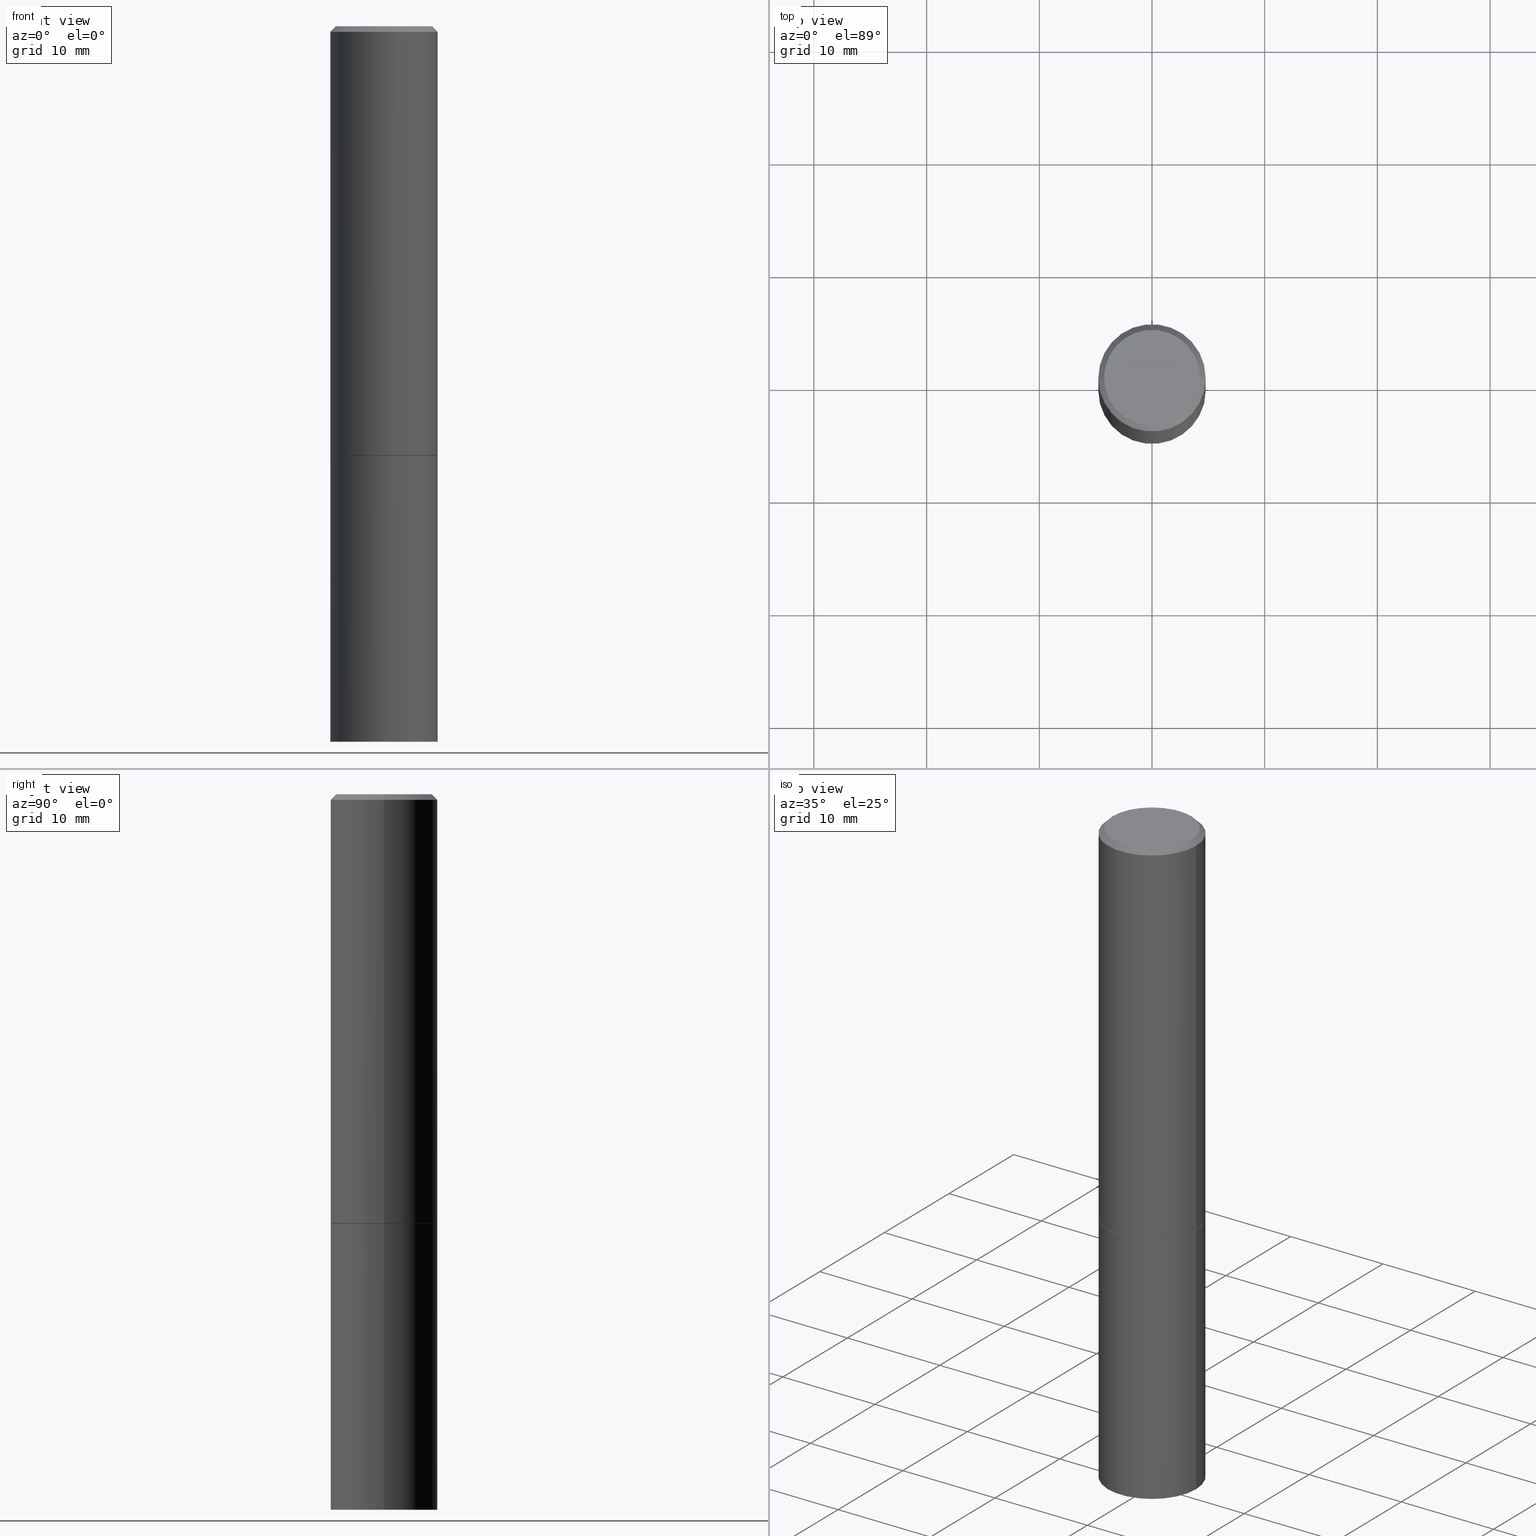
[diagram: canonical four-view strip — front | top / right | iso, engineering-drawing reading convention]
A machine part, canonical four-view strip (front | top / right | iso — engineering-drawing reading convention). The complete STEP part file that produces these views, byte-faithful:
ISO-10303-21;
HEADER;
FILE_DESCRIPTION (( 'STEP AP203' ),
    '1' );
FILE_NAME ('91029.STEP',
    '2024-03-01T03:23:02',
    ( '' ),
    ( '' ),
    'SwSTEP 2.0',
    'SolidWorks 2023',
    '' );
FILE_SCHEMA (( 'CONFIG_CONTROL_DESIGN' ));
ENDSEC;

DATA;
#1 = DIRECTION ( 'NONE',  ( -2.445468806185136597E-29, 3.491481338843145583E-15, 1.000000000000000000 ) ) ;
#2 = ORIENTED_EDGE ( 'NONE', *, *, #295, .F. ) ;
#3 = EDGE_LOOP ( 'NONE', ( #196, #287 ) ) ;
#4 = VERTEX_POINT ( 'NONE', #358 ) ;
#5 = AXIS2_PLACEMENT_3D ( 'NONE', #65, #197, #35 ) ;
#6 = PRODUCT ( '91029', '91029', '', ( #265 ) ) ;
#7 = PERSON_AND_ORGANIZATION ( #105, #303 ) ;
#8 = ADVANCED_BREP_SHAPE_REPRESENTATION ( '91029', ( #288, #33, #5 ), #124 ) ;
#9 = COORDINATED_UNIVERSAL_TIME_OFFSET ( 5, 0, .BEHIND. ) ;
#10 = DIRECTION ( 'NONE',  ( 1.000000000000000000, -6.982962677686265922E-15, 0.000000000000000000 ) ) ;
#11 = CARTESIAN_POINT ( 'NONE',  ( -0.1874999999999999445, 1.332267629550187454E-15, -9.223003294227945188E-30 ) ) ;
#12 = ORIENTED_EDGE ( 'NONE', *, *, #79, .T. ) ;
#13 = PRODUCT_DEFINITION ( 'UNKNOWN', '', #89, #222 ) ;
#14 = CC_DESIGN_APPROVAL ( #170, ( #89 ) ) ;
#15 = CARTESIAN_POINT ( 'NONE',  ( 6.113672015462842613E-29, -8.728703347107864943E-15, -2.500000000000000000 ) ) ;
#16 = CARTESIAN_POINT ( 'NONE',  ( -0.1874999999999998890, 1.239475875289310921E-15, -0.02000000000000004205 ) ) ;
#17 = CARTESIAN_POINT ( 'NONE',  ( 3.668203209277706016E-29, -5.237222008264719754E-15, -1.500000000000000444 ) ) ;
#18 = DIRECTION ( 'NONE',  ( 2.438088387897960049E-29, -3.491481338843145188E-15, -1.000000000000000000 ) ) ;
#19 = VERTEX_POINT ( 'NONE', #276 ) ;
#20 = EDGE_CURVE ( 'NONE', #224, #53, #167, .T. ) ;
#21 = PLANE ( 'NONE',  #320 ) ;
#22 = CLOSED_SHELL ( 'NONE', ( #49, #259, #83, #267 ) ) ;
#23 = ORIENTED_EDGE ( 'NONE', *, *, #118, .T. ) ;
#24 = EDGE_CURVE ( 'NONE', #19, #188, #134, .T. ) ;
#25 = ORIENTED_EDGE ( 'NONE', *, *, #240, .T. ) ;
#26 = DIRECTION ( 'NONE',  ( -1.000000000000000000, 6.982962677686265922E-15, 0.000000000000000000 ) ) ;
#27 = DIRECTION ( 'NONE',  ( -2.445468806185136597E-29, 3.491481338843145583E-15, 1.000000000000000000 ) ) ;
#28 = VERTEX_POINT ( 'NONE', #297 ) ;
#29 = ADVANCED_FACE ( 'NONE', ( #39 ), #241, .T. ) ;
#30 = DIRECTION ( 'NONE',  ( -2.445468806185136877E-29, 3.491481338843145188E-15, 1.000000000000000000 ) ) ;
#31 = LOCAL_TIME ( 22, 23, 2.000000000000000000, #318 ) ;
#32 = APPROVAL_DATE_TIME ( #160, #309 ) ;
#33 = MANIFOLD_SOLID_BREP ( 'Body-Move/Copy2[2]', #339 ) ;
#34 = EDGE_CURVE ( 'NONE', #77, #244, #239, .T. ) ;
#35 = DIRECTION ( 'NONE',  ( 1.000000000000000000, 0.000000000000000000, 0.000000000000000000 ) ) ;
#36 = CARTESIAN_POINT ( 'NONE',  ( 0.1864999999999999714, -6.539544547653208748E-15, -1.500000000000000444 ) ) ;
#37 = DIRECTION ( 'NONE',  ( 1.000000000000000000, -6.982962677686269077E-15, 0.000000000000000000 ) ) ;
#38 = CARTESIAN_POINT ( 'NONE',  ( 3.668203209277706016E-29, -5.237222008264719754E-15, -1.500000000000000444 ) ) ;
#39 = FACE_OUTER_BOUND ( 'NONE', #325, .T. ) ;
#40 = CARTESIAN_POINT ( 'NONE',  ( -0.1875000000000000278, -5.650695048136103317E-15, -1.500000000000000222 ) ) ;
#41 = CC_DESIGN_PERSON_AND_ORGANIZATION_ASSIGNMENT ( #91, #162, ( #6 ) ) ;
#42 = CALENDAR_DATE ( 2024, 29, 2 ) ;
#43 = AXIS2_PLACEMENT_3D ( 'NONE', #98, #207, #329 ) ;
#44 = AXIS2_PLACEMENT_3D ( 'NONE', #284, #347, #127 ) ;
#45 = FACE_OUTER_BOUND ( 'NONE', #252, .T. ) ;
#46 = LOCAL_TIME ( 22, 23, 2.000000000000000000, #9 ) ;
#47 = DATE_TIME_ROLE ( 'creation_date' ) ;
#48 = DIRECTION ( 'NONE',  ( 1.000000000000000000, -6.982962677686266711E-15, 4.876176775795935793E-29 ) ) ;
#49 = ADVANCED_FACE ( 'NONE', ( #102 ), #203, .T. ) ;
#50 = UNCERTAINTY_MEASURE_WITH_UNIT (LENGTH_MEASURE( 1.000000000000000082E-05 ), #299, 'distance_accuracy_value', 'NONE');
#51 = CARTESIAN_POINT ( 'NONE',  ( 0.000000000000000000, 0.000000000000000000, 0.000000000000000000 ) ) ;
#52 = AXIS2_PLACEMENT_3D ( 'NONE', #146, #361, #103 ) ;
#53 = VERTEX_POINT ( 'NONE', #40 ) ;
#54 = CARTESIAN_POINT ( 'NONE',  ( 3.665757740471519853E-29, -5.233730526925875958E-15, -1.499000000000000110 ) ) ;
#55 = EDGE_CURVE ( 'NONE', #147, #53, #152, .T. ) ;
#56 = APPROVAL_DATE_TIME ( #315, #275 ) ;
#57 = VERTEX_POINT ( 'NONE', #326 ) ;
#58 = CARTESIAN_POINT ( 'NONE',  ( 4.890937612370283668E-31, -6.982962677686305168E-17, -0.02000000000000004205 ) ) ;
#59 = CIRCLE ( 'NONE', #43, 0.1874999999999998890 ) ;
#60 = DIRECTION ( 'NONE',  ( -1.000000000000000000, 6.982962677686265922E-15, 0.000000000000000000 ) ) ;
#61 = AXIS2_PLACEMENT_3D ( 'NONE', #277, #193, #26 ) ;
#62 = CALENDAR_DATE ( 2024, 29, 2 ) ;
#63 = DIRECTION ( 'NONE',  ( -1.000000000000000000, 6.982962677686265922E-15, -4.876176775795935793E-29 ) ) ;
#64 = AXIS2_PLACEMENT_3D ( 'NONE', #125, #156, #63 ) ;
#65 = CARTESIAN_POINT ( 'NONE',  ( 0.000000000000000000, 0.000000000000000000, 0.000000000000000000 ) ) ;
#66 = LINE ( 'NONE', #36, #290 ) ;
#67 = CARTESIAN_POINT ( 'NONE',  ( 3.668203209277704895E-29, -5.237222008264718177E-15, -1.500000000000000222 ) ) ;
#68 = CARTESIAN_POINT ( 'NONE',  ( 0.000000000000000000, 0.000000000000000000, 0.000000000000000000 ) ) ;
#69 = AXIS2_PLACEMENT_3D ( 'NONE', #307, #305, #334 ) ;
#70 = DIRECTION ( 'NONE',  ( 1.000000000000000000, -6.982962677686266711E-15, 0.000000000000000000 ) ) ;
#71 = DIRECTION ( 'NONE',  ( -2.445468806185136597E-29, 3.491481338843145583E-15, 1.000000000000000000 ) ) ;
#72 = EDGE_CURVE ( 'NONE', #224, #57, #225, .T. ) ;
#73 = EDGE_LOOP ( 'NONE', ( #194, #220, #232, #183 ) ) ;
#74 = FACE_OUTER_BOUND ( 'NONE', #363, .T. ) ;
#75 = LINE ( 'NONE', #268, #302 ) ;
#76 = ORIENTED_EDGE ( 'NONE', *, *, #322, .F. ) ;
#77 = VERTEX_POINT ( 'NONE', #182 ) ;
#78 = LOCAL_TIME ( 22, 23, 2.000000000000000000, #362 ) ;
#79 = EDGE_CURVE ( 'NONE', #270, #342, #310, .T. ) ;
#80 = FACE_OUTER_BOUND ( 'NONE', #73, .T. ) ;
#81 = PERSON_AND_ORGANIZATION_ROLE ( 'classification_officer' ) ;
#82 = AXIS2_PLACEMENT_3D ( 'NONE', #90, #292, #120 ) ;
#83 = ADVANCED_FACE ( 'NONE', ( #174 ), #335, .F. ) ;
#84 = PLANE ( 'NONE',  #191 ) ;
#85 = DIRECTION ( 'NONE',  ( 1.000000000000000000, -6.982962677686266711E-15, 0.000000000000000000 ) ) ;
#86 = DIRECTION ( 'NONE',  ( 1.000000000000000000, -6.982962677686269077E-15, 0.000000000000000000 ) ) ;
#87 = DIRECTION ( 'NONE',  ( 1.000000000000000000, -6.982962677686265922E-15, 4.876176775795935793E-29 ) ) ;
#88 = CALENDAR_DATE ( 2024, 29, 2 ) ;
#89 = PRODUCT_DEFINITION_FORMATION_WITH_SPECIFIED_SOURCE ( 'ANY', '', #6, .NOT_KNOWN. ) ;
#90 = CARTESIAN_POINT ( 'NONE',  ( 3.668203209277706016E-29, -5.237222008264719754E-15, -1.500000000000000444 ) ) ;
#91 = PERSON_AND_ORGANIZATION ( #105, #303 ) ;
#92 = ORIENTED_EDGE ( 'NONE', *, *, #227, .F. ) ;
#93 = APPROVAL_PERSON_ORGANIZATION ( #178, #275, #219 ) ;
#94 =( NAMED_UNIT ( * ) PLANE_ANGLE_UNIT ( ) SI_UNIT ( $, .RADIAN. ) );
#95 = CARTESIAN_POINT ( 'NONE',  ( 0.000000000000000000, 0.000000000000000000, 0.000000000000000000 ) ) ;
#96 = DIRECTION ( 'NONE',  ( -2.445468806185136877E-29, 3.491481338843145188E-15, 1.000000000000000000 ) ) ;
#97 = ORIENTED_EDGE ( 'NONE', *, *, #240, .F. ) ;
#98 = CARTESIAN_POINT ( 'NONE',  ( 4.890937612370283668E-31, -6.982962677686305168E-17, -0.02000000000000004205 ) ) ;
#99 = CARTESIAN_POINT ( 'NONE',  ( 6.113672015462842613E-29, -8.728703347107864943E-15, -2.500000000000000000 ) ) ;
#100 = PERSON_AND_ORGANIZATION ( #105, #303 ) ;
#101 = CYLINDRICAL_SURFACE ( 'NONE', #247, 0.1874999999999999445 ) ;
#102 = FACE_OUTER_BOUND ( 'NONE', #237, .T. ) ;
#103 = DIRECTION ( 'NONE',  ( 1.000000000000000000, -6.982962677686266711E-15, 0.000000000000000000 ) ) ;
#104 = DIRECTION ( 'NONE',  ( 1.000000000000000000, -6.982962677686266711E-15, 4.876176775795935793E-29 ) ) ;
#105 = PERSON ( 'UNSPECIFIED', 'UNSPECIFIED', 'UNSPECIFIED', ('UNSPECIFIED'), ('UNSPECIFIED'), ('UNSPECIFIED') ) ;
#106 = ADVANCED_FACE ( 'NONE', ( #306 ), #319, .T. ) ;
#107 = VECTOR ( 'NONE', #96, 39.37007874015748143 ) ;
#108 = DIRECTION ( 'NONE',  ( 1.000000000000000000, -6.982962677686265922E-15, 4.876176775795935793E-29 ) ) ;
#109 = DIRECTION ( 'NONE',  ( 1.000000000000000000, -6.982962677686265922E-15, 4.876176775795935793E-29 ) ) ;
#110 = PERSON_AND_ORGANIZATION ( #105, #303 ) ;
#111 = DATE_AND_TIME ( #311, #46 ) ;
#112 = EDGE_CURVE ( 'NONE', #342, #188, #210, .T. ) ;
#113 = ORIENTED_EDGE ( 'NONE', *, *, #112, .F. ) ;
#114 = EDGE_LOOP ( 'NONE', ( #151, #257 ) ) ;
#115 = CALENDAR_DATE ( 2024, 29, 2 ) ;
#116 = CONICAL_SURFACE ( 'NONE', #149, 0.1874999999999998890, 0.7853981633974471688 ) ;
#117 = ORIENTED_EDGE ( 'NONE', *, *, #55, .T. ) ;
#118 = EDGE_CURVE ( 'NONE', #77, #28, #148, .T. ) ;
#119 = APPROVAL_PERSON_ORGANIZATION ( #145, #170, #333 ) ;
#120 = DIRECTION ( 'NONE',  ( 1.000000000000000000, -6.982962677686269077E-15, 0.000000000000000000 ) ) ;
#121 = LENGTH_MEASURE_WITH_UNIT ( LENGTH_MEASURE( 0.02539999999999999897 ), #256 );
#122 = PRODUCT_RELATED_PRODUCT_CATEGORY ( 'detail', '', ( #6 ) ) ;
#123 = AXIS2_PLACEMENT_3D ( 'NONE', #99, #1, #85 ) ;
#124 =( GEOMETRIC_REPRESENTATION_CONTEXT ( 3 ) GLOBAL_UNCERTAINTY_ASSIGNED_CONTEXT ( ( #50 ) ) GLOBAL_UNIT_ASSIGNED_CONTEXT ( ( #299, #94, #165 ) ) REPRESENTATION_CONTEXT ( 'NONE', 'WORKASPACE' ) );
#125 = CARTESIAN_POINT ( 'NONE',  ( 1.169646248512448806E-15, 0.1674999999999998990, -5.848231242562264739E-16 ) ) ;
#126 = ADVANCED_FACE ( 'NONE', ( #45 ), #101, .T. ) ;
#127 = DIRECTION ( 'NONE',  ( 1.000000000000000000, -6.982962677686269077E-15, 0.000000000000000000 ) ) ;
#128 = DIRECTION ( 'NONE',  ( 1.000000000000000000, -6.982962677686266711E-15, 0.000000000000000000 ) ) ;
#129 = DIRECTION ( 'NONE',  ( 1.000000000000000000, -6.982962677686265922E-15, 4.876176775795935793E-29 ) ) ;
#130 = AXIS2_PLACEMENT_3D ( 'NONE', #180, #304, #108 ) ;
#131 = EDGE_CURVE ( 'NONE', #188, #342, #59, .T. ) ;
#132 = ORIENTED_EDGE ( 'NONE', *, *, #235, .T. ) ;
#133 = ORIENTED_EDGE ( 'NONE', *, *, #24, .F. ) ;
#134 = LINE ( 'NONE', #365, #359 ) ;
#135 = CC_DESIGN_SECURITY_CLASSIFICATION ( #249, ( #89 ) ) ;
#136 = EDGE_CURVE ( 'NONE', #4, #342, #75, .T. ) ;
#137 = DATE_AND_TIME ( #115, #236 ) ;
#138 = PERSON_AND_ORGANIZATION ( #105, #303 ) ;
#139 = ORIENTED_EDGE ( 'NONE', *, *, #177, .F. ) ;
#140 = AXIS2_PLACEMENT_3D ( 'NONE', #353, #144, #128 ) ;
#141 = EDGE_CURVE ( 'NONE', #19, #4, #352, .T. ) ;
#142 = FACE_OUTER_BOUND ( 'NONE', #3, .T. ) ;
#143 = LINE ( 'NONE', #11, #107 ) ;
#144 = DIRECTION ( 'NONE',  ( -2.445468806185136597E-29, 3.491481338843145583E-15, 1.000000000000000000 ) ) ;
#145 = PERSON_AND_ORGANIZATION ( #105, #303 ) ;
#146 = CARTESIAN_POINT ( 'NONE',  ( 3.668203209277704895E-29, -5.237222008264718177E-15, -1.500000000000000222 ) ) ;
#147 = VERTEX_POINT ( 'NONE', #228 ) ;
#148 = CIRCLE ( 'NONE', #44, 0.1864999999999999714 ) ;
#149 = AXIS2_PLACEMENT_3D ( 'NONE', #58, #190, #60 ) ;
#150 = CARTESIAN_POINT ( 'NONE',  ( 0.1874999999999999445, -1.309305502066174614E-15, 9.142831454617376809E-30 ) ) ;
#151 = ORIENTED_EDGE ( 'NONE', *, *, #158, .F. ) ;
#152 = CIRCLE ( 'NONE', #52, 0.1875000000000000278 ) ;
#153 = AXIS2_PLACEMENT_3D ( 'NONE', #67, #234, #201 ) ;
#154 = ORIENTED_EDGE ( 'NONE', *, *, #112, .T. ) ;
#155 = CARTESIAN_POINT ( 'NONE',  ( 3.668203209277706016E-29, -5.237222008264719754E-15, -1.500000000000000444 ) ) ;
#156 = DIRECTION ( 'NONE',  ( 2.438088387897960049E-29, -3.491481338843145188E-15, -1.000000000000000000 ) ) ;
#157 = ORIENTED_EDGE ( 'NONE', *, *, #79, .F. ) ;
#158 = EDGE_CURVE ( 'NONE', #28, #77, #242, .T. ) ;
#159 = VECTOR ( 'NONE', #269, 39.37007874015748143 ) ;
#160 = DATE_AND_TIME ( #62, #31 ) ;
#161 = CC_DESIGN_PERSON_AND_ORGANIZATION_ASSIGNMENT ( #345, #81, ( #249 ) ) ;
#162 = PERSON_AND_ORGANIZATION_ROLE ( 'design_owner' ) ;
#163 = CARTESIAN_POINT ( 'NONE',  ( 0.1875000000000000278, -6.543036028992050967E-15, -1.499000000000000110 ) ) ;
#164 = DIRECTION ( 'NONE',  ( -2.445468806185136597E-29, 3.491481338843145583E-15, 1.000000000000000000 ) ) ;
#165 =( NAMED_UNIT ( * ) SI_UNIT ( $, .STERADIAN. ) SOLID_ANGLE_UNIT ( ) );
#166 = DIRECTION ( 'NONE',  ( -2.445468806185136597E-29, 3.491481338843145583E-15, 1.000000000000000000 ) ) ;
#167 = LINE ( 'NONE', #209, #159 ) ;
#168 = ORIENTED_EDGE ( 'NONE', *, *, #295, .T. ) ;
#169 = ORIENTED_EDGE ( 'NONE', *, *, #24, .T. ) ;
#170 = APPROVAL ( #274, 'UNSPECIFIED' ) ;
#171 = AXIS2_PLACEMENT_3D ( 'NONE', #95, #71, #296 ) ;
#172 = AXIS2_PLACEMENT_3D ( 'NONE', #38, #301, #37 ) ;
#173 = CARTESIAN_POINT ( 'NONE',  ( 0.000000000000000000, 0.000000000000000000, 0.000000000000000000 ) ) ;
#174 = FACE_OUTER_BOUND ( 'NONE', #281, .T. ) ;
#175 = CYLINDRICAL_SURFACE ( 'NONE', #324, 0.1875000000000000278 ) ;
#176 = DIRECTION ( 'NONE',  ( -0.7071067811865466846, 2.468850131082247989E-15, -0.7071067811865483499 ) ) ;
#177 = EDGE_CURVE ( 'NONE', #270, #244, #308, .T. ) ;
#178 = PERSON_AND_ORGANIZATION ( #105, #303 ) ;
#179 = AXIS2_PLACEMENT_3D ( 'NONE', #349, #317, #10 ) ;
#180 = CARTESIAN_POINT ( 'NONE',  ( 0.000000000000000000, 0.000000000000000000, 0.000000000000000000 ) ) ;
#181 = AXIS2_PLACEMENT_3D ( 'NONE', #54, #192, #341 ) ;
#182 = CARTESIAN_POINT ( 'NONE',  ( -0.1864999999999999714, -3.906761351723910512E-15, -1.500000000000000444 ) ) ;
#183 = ORIENTED_EDGE ( 'NONE', *, *, #212, .F. ) ;
#184 = CC_DESIGN_PERSON_AND_ORGANIZATION_ASSIGNMENT ( #7, #214, ( #89 ) ) ;
#185 = SHAPE_DEFINITION_REPRESENTATION ( #331, #8 ) ;
#186 = DIRECTION ( 'NONE',  ( -2.445468806185136877E-29, 3.491481338843145188E-15, 1.000000000000000000 ) ) ;
#187 = ORIENTED_EDGE ( 'NONE', *, *, #158, .T. ) ;
#188 = VERTEX_POINT ( 'NONE', #16 ) ;
#189 = FACE_OUTER_BOUND ( 'NONE', #312, .T. ) ;
#190 = DIRECTION ( 'NONE',  ( 2.445468806185136597E-29, -3.491481338843145583E-15, -1.000000000000000000 ) ) ;
#191 = AXIS2_PLACEMENT_3D ( 'NONE', #155, #344, #87 ) ;
#192 = DIRECTION ( 'NONE',  ( -2.445468806185136597E-29, 3.491481338843145583E-15, 1.000000000000000000 ) ) ;
#193 = DIRECTION ( 'NONE',  ( 2.445468806185136597E-29, -3.491481338843145583E-15, -1.000000000000000000 ) ) ;
#194 = ORIENTED_EDGE ( 'NONE', *, *, #20, .F. ) ;
#195 = APPROVAL_ROLE ( '' ) ;
#196 = ORIENTED_EDGE ( 'NONE', *, *, #235, .F. ) ;
#197 = DIRECTION ( 'NONE',  ( 0.000000000000000000, 0.000000000000000000, 1.000000000000000000 ) ) ;
#198 = AXIS2_PLACEMENT_3D ( 'NONE', #17, #282, #86 ) ;
#199 = CC_DESIGN_APPROVAL ( #309, ( #13 ) ) ;
#200 = APPLICATION_PROTOCOL_DEFINITION ( 'international standard', 'config_control_design', 1994, #250 ) ;
#201 = DIRECTION ( 'NONE',  ( 1.000000000000000000, -6.982962677686266711E-15, 0.000000000000000000 ) ) ;
#202 = FACE_OUTER_BOUND ( 'NONE', #264, .T. ) ;
#203 = CYLINDRICAL_SURFACE ( 'NONE', #271, 0.1875000000000000278 ) ;
#204 = CARTESIAN_POINT ( 'NONE',  ( 0.000000000000000000, 0.000000000000000000, 0.000000000000000000 ) ) ;
#205 = CC_DESIGN_PERSON_AND_ORGANIZATION_ASSIGNMENT ( #138, #278, ( #89 ) ) ;
#206 = ORIENTED_EDGE ( 'NONE', *, *, #20, .T. ) ;
#207 = DIRECTION ( 'NONE',  ( -2.445468806185136597E-29, 3.491481338843145583E-15, 1.000000000000000000 ) ) ;
#208 = ORIENTED_EDGE ( 'NONE', *, *, #55, .F. ) ;
#209 = CARTESIAN_POINT ( 'NONE',  ( -0.1875000000000000278, 1.332267629550188046E-15, -9.223003294227947991E-30 ) ) ;
#210 = CIRCLE ( 'NONE', #179, 0.1874999999999998890 ) ;
#211 = LOCAL_TIME ( 22, 23, 2.000000000000000000, #246 ) ;
#212 = EDGE_CURVE ( 'NONE', #53, #147, #330, .T. ) ;
#213 = DATE_AND_TIME ( #42, #78 ) ;
#214 = PERSON_AND_ORGANIZATION_ROLE ( 'design_supplier' ) ;
#215 = APPROVAL_DATE_TIME ( #111, #170 ) ;
#216 = ORIENTED_EDGE ( 'NONE', *, *, #131, .F. ) ;
#217 = VECTOR ( 'NONE', #231, 39.37007874015748143 ) ;
#218 = EDGE_LOOP ( 'NONE', ( #97, #293, #154, #133 ) ) ;
#219 = APPROVAL_ROLE ( '' ) ;
#220 = ORIENTED_EDGE ( 'NONE', *, *, #72, .T. ) ;
#221 = EDGE_LOOP ( 'NONE', ( #254, #25 ) ) ;
#222 = DESIGN_CONTEXT ( 'detailed design', #354, 'design' ) ;
#223 = APPROVAL_STATUS ( 'not_yet_approved' ) ;
#224 = VERTEX_POINT ( 'NONE', #321 ) ;
#225 = CIRCLE ( 'NONE', #123, 0.1875000000000000278 ) ;
#226 = ORIENTED_EDGE ( 'NONE', *, *, #328, .T. ) ;
#227 = EDGE_CURVE ( 'NONE', #28, #270, #66, .T. ) ;
#228 = CARTESIAN_POINT ( 'NONE',  ( 0.1875000000000000278, -6.546527510330893974E-15, -1.500000000000000222 ) ) ;
#229 = CIRCLE ( 'NONE', #130, 0.1674999999999998990 ) ;
#230 = APPLICATION_PROTOCOL_DEFINITION ( 'international standard', 'config_control_design', 1994, #354 ) ;
#231 = DIRECTION ( 'NONE',  ( -0.7071067811864388819, 7.493145998869961307E-15, 0.7071067811866561525 ) ) ;
#232 = ORIENTED_EDGE ( 'NONE', *, *, #322, .T. ) ;
#233 = APPROVAL_STATUS ( 'not_yet_approved' ) ;
#234 = DIRECTION ( 'NONE',  ( -2.445468806185136597E-29, 3.491481338843145583E-15, 1.000000000000000000 ) ) ;
#235 = EDGE_CURVE ( 'NONE', #57, #224, #314, .T. ) ;
#236 = LOCAL_TIME ( 22, 23, 2.000000000000000000, #338 ) ;
#237 = EDGE_LOOP ( 'NONE', ( #132, #206, #208, #76 ) ) ;
#238 = DIRECTION ( 'NONE',  ( -1.000000000000000000, 6.982962677686265922E-15, -4.876176775795935793E-29 ) ) ;
#239 = LINE ( 'NONE', #364, #217 ) ;
#240 = EDGE_CURVE ( 'NONE', #4, #19, #229, .T. ) ;
#241 = CONICAL_SURFACE ( 'NONE', #198, 0.1864999999999999714, 0.7853981633972946241 ) ;
#242 = CIRCLE ( 'NONE', #172, 0.1864999999999999714 ) ;
#243 = DIRECTION ( 'NONE',  ( -2.445468806185136597E-29, 3.491481338843145583E-15, 1.000000000000000000 ) ) ;
#244 = VERTEX_POINT ( 'NONE', #245 ) ;
#245 = CARTESIAN_POINT ( 'NONE',  ( -0.1875000000000000278, -1.319512447301180005E-15, -1.499000000000000110 ) ) ;
#246 = COORDINATED_UNIVERSAL_TIME_OFFSET ( 5, 0, .BEHIND. ) ;
#247 = AXIS2_PLACEMENT_3D ( 'NONE', #204, #166, #104 ) ;
#248 = CC_DESIGN_APPROVAL ( #275, ( #249 ) ) ;
#249 = SECURITY_CLASSIFICATION ( '', '', #251 ) ;
#250 = APPLICATION_CONTEXT ( 'configuration controlled 3d designs of mechanical parts and assemblies' ) ;
#251 = SECURITY_CLASSIFICATION_LEVEL ( 'unclassified' ) ;
#252 = EDGE_LOOP ( 'NONE', ( #357, #168, #113, #157 ) ) ;
#253 = CARTESIAN_POINT ( 'NONE',  ( 1.309305502066236145E-15, 0.1874999999999912847, -2.500000000000000444 ) ) ;
#254 = ORIENTED_EDGE ( 'NONE', *, *, #141, .T. ) ;
#255 = ADVANCED_FACE ( 'NONE', ( #74 ), #286, .T. ) ;
#256 =( LENGTH_UNIT ( ) NAMED_UNIT ( * ) SI_UNIT ( $, .METRE. ) );
#257 = ORIENTED_EDGE ( 'NONE', *, *, #118, .F. ) ;
#258 = CARTESIAN_POINT ( 'NONE',  ( 0.1874999999999998890, -1.356173001359024480E-15, -0.02000000000000004205 ) ) ;
#259 = ADVANCED_FACE ( 'NONE', ( #142 ), #21, .T. ) ;
#260 = FACE_OUTER_BOUND ( 'NONE', #221, .T. ) ;
#261 = DIRECTION ( 'NONE',  ( 0.7071067811864388819, -2.468850131081119129E-15, 0.7071067811866561525 ) ) ;
#262 = AXIS2_PLACEMENT_3D ( 'NONE', #15, #164, #70 ) ;
#263 = LINE ( 'NONE', #289, #340 ) ;
#264 = EDGE_LOOP ( 'NONE', ( #187, #355, #139, #92 ) ) ;
#265 = MECHANICAL_CONTEXT ( 'NONE', #250, 'mechanical' ) ;
#266 = ORIENTED_EDGE ( 'NONE', *, *, #34, .F. ) ;
#267 = ADVANCED_FACE ( 'NONE', ( #80 ), #175, .T. ) ;
#268 = CARTESIAN_POINT ( 'NONE',  ( 0.1874999999999998890, -1.356173001359024480E-15, -0.02000000000000004205 ) ) ;
#269 = DIRECTION ( 'NONE',  ( -2.445468806185136877E-29, 3.491481338843145188E-15, 1.000000000000000000 ) ) ;
#270 = VERTEX_POINT ( 'NONE', #163 ) ;
#271 = AXIS2_PLACEMENT_3D ( 'NONE', #68, #298, #129 ) ;
#272 = CIRCLE ( 'NONE', #181, 0.1875000000000000278 ) ;
#273 = DIMENSIONAL_EXPONENTS ( 1.000000000000000000, 0.000000000000000000, 0.000000000000000000, 0.000000000000000000, 0.000000000000000000, 0.000000000000000000, 0.000000000000000000 ) ;
#274 = APPROVAL_STATUS ( 'not_yet_approved' ) ;
#275 = APPROVAL ( #223, 'UNSPECIFIED' ) ;
#276 = CARTESIAN_POINT ( 'NONE',  ( -0.1674999999999998990, 1.204561061900879864E-15, -8.301862719484106184E-30 ) ) ;
#277 = CARTESIAN_POINT ( 'NONE',  ( 4.890937612370283668E-31, -6.982962677686305168E-17, -0.02000000000000004205 ) ) ;
#278 = PERSON_AND_ORGANIZATION_ROLE ( 'creator' ) ;
#279 = ADVANCED_FACE ( 'NONE', ( #260 ), #351, .F. ) ;
#280 = ORIENTED_EDGE ( 'NONE', *, *, #212, .T. ) ;
#281 = EDGE_LOOP ( 'NONE', ( #117, #280 ) ) ;
#282 = DIRECTION ( 'NONE',  ( -2.445468806185136597E-29, 3.491481338843145583E-15, 1.000000000000000000 ) ) ;
#283 = APPROVAL_PERSON_ORGANIZATION ( #100, #309, #195 ) ;
#284 = CARTESIAN_POINT ( 'NONE',  ( 3.668203209277706016E-29, -5.237222008264719754E-15, -1.500000000000000444 ) ) ;
#285 = CC_DESIGN_DATE_AND_TIME_ASSIGNMENT ( #137, #313, ( #249 ) ) ;
#286 = CYLINDRICAL_SURFACE ( 'NONE', #360, 0.1874999999999999445 ) ;
#287 = ORIENTED_EDGE ( 'NONE', *, *, #72, .F. ) ;
#288 = MANIFOLD_SOLID_BREP ( 'Body-Move/Copy2[1]', #22 ) ;
#289 = CARTESIAN_POINT ( 'NONE',  ( 0.1875000000000000278, -1.309305502066175008E-15, 9.142831454617381013E-30 ) ) ;
#290 = VECTOR ( 'NONE', #261, 39.37007874015748143 ) ;
#291 = ORIENTED_EDGE ( 'NONE', *, *, #136, .F. ) ;
#292 = DIRECTION ( 'NONE',  ( -2.445468806185136597E-29, 3.491481338843145583E-15, 1.000000000000000000 ) ) ;
#293 = ORIENTED_EDGE ( 'NONE', *, *, #136, .T. ) ;
#294 = VECTOR ( 'NONE', #186, 39.37007874015748143 ) ;
#295 = EDGE_CURVE ( 'NONE', #244, #188, #143, .T. ) ;
#296 = DIRECTION ( 'NONE',  ( 1.000000000000000000, -6.982962677686265922E-15, 4.876176775795935793E-29 ) ) ;
#297 = CARTESIAN_POINT ( 'NONE',  ( 0.1864999999999999714, -6.539544547653208748E-15, -1.500000000000000444 ) ) ;
#298 = DIRECTION ( 'NONE',  ( -2.445468806185136597E-29, 3.491481338843145583E-15, 1.000000000000000000 ) ) ;
#299 =( CONVERSION_BASED_UNIT ( 'INCH', #121 ) LENGTH_UNIT ( ) NAMED_UNIT ( #273 ) );
#300 = ADVANCED_FACE ( 'NONE', ( #202 ), #366, .T. ) ;
#301 = DIRECTION ( 'NONE',  ( -2.445468806185136597E-29, 3.491481338843145583E-15, 1.000000000000000000 ) ) ;
#302 = VECTOR ( 'NONE', #323, 39.37007874015748143 ) ;
#303 = ORGANIZATION ( 'UNSPECIFIED', 'UNSPECIFIED', '' ) ;
#304 = DIRECTION ( 'NONE',  ( -2.445468806185136597E-29, 3.491481338843145583E-15, 1.000000000000000000 ) ) ;
#305 = DIRECTION ( 'NONE',  ( 2.438088387897960049E-29, -3.491481338843145188E-15, -1.000000000000000000 ) ) ;
#306 = FACE_OUTER_BOUND ( 'NONE', #218, .T. ) ;
#307 = CARTESIAN_POINT ( 'NONE',  ( 1.309305502066211690E-15, 0.1874999999999947820, -1.500000000000000666 ) ) ;
#308 = CIRCLE ( 'NONE', #140, 0.1875000000000000278 ) ;
#309 = APPROVAL ( #233, 'UNSPECIFIED' ) ;
#310 = LINE ( 'NONE', #150, #294 ) ;
#311 = CALENDAR_DATE ( 2024, 29, 2 ) ;
#312 = EDGE_LOOP ( 'NONE', ( #291, #316, #169, #327 ) ) ;
#313 = DATE_TIME_ROLE ( 'classification_date' ) ;
#314 = CIRCLE ( 'NONE', #262, 0.1875000000000000278 ) ;
#315 = DATE_AND_TIME ( #88, #211 ) ;
#316 = ORIENTED_EDGE ( 'NONE', *, *, #141, .F. ) ;
#317 = DIRECTION ( 'NONE',  ( -2.445468806185136597E-29, 3.491481338843145583E-15, 1.000000000000000000 ) ) ;
#318 = COORDINATED_UNIVERSAL_TIME_OFFSET ( 5, 0, .BEHIND. ) ;
#319 = CONICAL_SURFACE ( 'NONE', #61, 0.1874999999999998890, 0.7853981633974471688 ) ;
#320 = AXIS2_PLACEMENT_3D ( 'NONE', #253, #18, #238 ) ;
#321 = CARTESIAN_POINT ( 'NONE',  ( -0.1875000000000000278, -5.650695048136103317E-15, -2.500000000000000000 ) ) ;
#322 = EDGE_CURVE ( 'NONE', #57, #147, #263, .T. ) ;
#323 = DIRECTION ( 'NONE',  ( 0.7071067811865466846, -7.319954787623252890E-15, -0.7071067811865483499 ) ) ;
#324 = AXIS2_PLACEMENT_3D ( 'NONE', #51, #243, #109 ) ;
#325 = EDGE_LOOP ( 'NONE', ( #266, #23, #332, #348 ) ) ;
#326 = CARTESIAN_POINT ( 'NONE',  ( 0.1875000000000000278, -1.003800884917403995E-14, -2.500000000000000000 ) ) ;
#327 = ORIENTED_EDGE ( 'NONE', *, *, #131, .T. ) ;
#328 = EDGE_CURVE ( 'NONE', #244, #270, #272, .T. ) ;
#329 = DIRECTION ( 'NONE',  ( 1.000000000000000000, -6.982962677686265922E-15, 0.000000000000000000 ) ) ;
#330 = CIRCLE ( 'NONE', #153, 0.1875000000000000278 ) ;
#331 = PRODUCT_DEFINITION_SHAPE ( 'NONE', 'NONE',  #13 ) ;
#332 = ORIENTED_EDGE ( 'NONE', *, *, #227, .T. ) ;
#333 = APPROVAL_ROLE ( '' ) ;
#334 = DIRECTION ( 'NONE',  ( -1.000000000000000000, 6.982962677686265922E-15, -4.876176775795935793E-29 ) ) ;
#335 = PLANE ( 'NONE',  #69 ) ;
#336 = ADVANCED_FACE ( 'NONE', ( #346 ), #84, .F. ) ;
#337 = PERSON_AND_ORGANIZATION_ROLE ( 'creator' ) ;
#338 = COORDINATED_UNIVERSAL_TIME_OFFSET ( 5, 0, .BEHIND. ) ;
#339 = CLOSED_SHELL ( 'NONE', ( #300, #126, #106, #356, #255, #29, #336, #279 ) ) ;
#340 = VECTOR ( 'NONE', #30, 39.37007874015748143 ) ;
#341 = DIRECTION ( 'NONE',  ( 1.000000000000000000, -6.982962677686266711E-15, 0.000000000000000000 ) ) ;
#342 = VERTEX_POINT ( 'NONE', #258 ) ;
#343 = CC_DESIGN_DATE_AND_TIME_ASSIGNMENT ( #213, #47, ( #13 ) ) ;
#344 = DIRECTION ( 'NONE',  ( -2.438088387897960049E-29, 3.491481338843145188E-15, 1.000000000000000000 ) ) ;
#345 = PERSON_AND_ORGANIZATION ( #105, #303 ) ;
#346 = FACE_OUTER_BOUND ( 'NONE', #114, .T. ) ;
#347 = DIRECTION ( 'NONE',  ( -2.445468806185136597E-29, 3.491481338843145583E-15, 1.000000000000000000 ) ) ;
#348 = ORIENTED_EDGE ( 'NONE', *, *, #328, .F. ) ;
#349 = CARTESIAN_POINT ( 'NONE',  ( 4.890937612370283668E-31, -6.982962677686305168E-17, -0.02000000000000004205 ) ) ;
#350 = CC_DESIGN_PERSON_AND_ORGANIZATION_ASSIGNMENT ( #110, #337, ( #13 ) ) ;
#351 = PLANE ( 'NONE',  #64 ) ;
#352 = CIRCLE ( 'NONE', #171, 0.1674999999999998990 ) ;
#353 = CARTESIAN_POINT ( 'NONE',  ( 3.665757740471519853E-29, -5.233730526925875958E-15, -1.499000000000000110 ) ) ;
#354 = APPLICATION_CONTEXT ( 'configuration controlled 3d designs of mechanical parts and assemblies' ) ;
#355 = ORIENTED_EDGE ( 'NONE', *, *, #34, .T. ) ;
#356 = ADVANCED_FACE ( 'NONE', ( #189 ), #116, .T. ) ;
#357 = ORIENTED_EDGE ( 'NONE', *, *, #177, .T. ) ;
#358 = CARTESIAN_POINT ( 'NONE',  ( 0.1674999999999998990, -1.252653207992877500E-15, 8.469775550109235181E-30 ) ) ;
#359 = VECTOR ( 'NONE', #176, 39.37007874015748143 ) ;
#360 = AXIS2_PLACEMENT_3D ( 'NONE', #173, #27, #48 ) ;
#361 = DIRECTION ( 'NONE',  ( -2.445468806185136597E-29, 3.491481338843145583E-15, 1.000000000000000000 ) ) ;
#362 = COORDINATED_UNIVERSAL_TIME_OFFSET ( 5, 0, .BEHIND. ) ;
#363 = EDGE_LOOP ( 'NONE', ( #2, #226, #12, #216 ) ) ;
#364 = CARTESIAN_POINT ( 'NONE',  ( -0.1864999999999999714, -3.912059806072132914E-15, -1.500000000000000444 ) ) ;
#365 = CARTESIAN_POINT ( 'NONE',  ( -0.1874999999999998890, 1.239475875289310921E-15, -0.02000000000000004205 ) ) ;
#366 = CONICAL_SURFACE ( 'NONE', #82, 0.1864999999999999714, 0.7853981633972946241 ) ;
ENDSEC;
END-ISO-10303-21;
